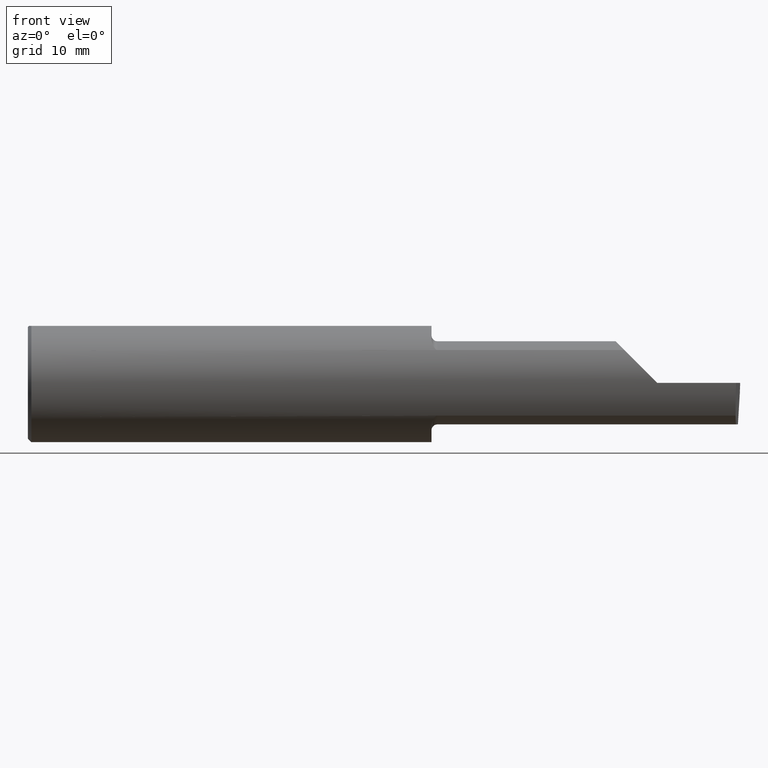
[diagram: clean part render]
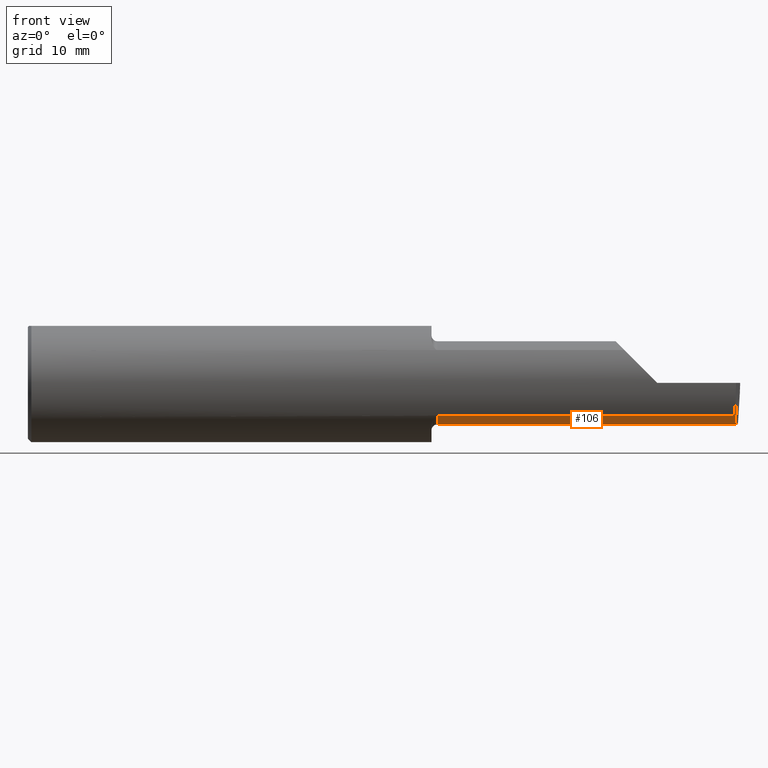
[diagram: same view with one face highlighted and labeled with its STEP entity id]
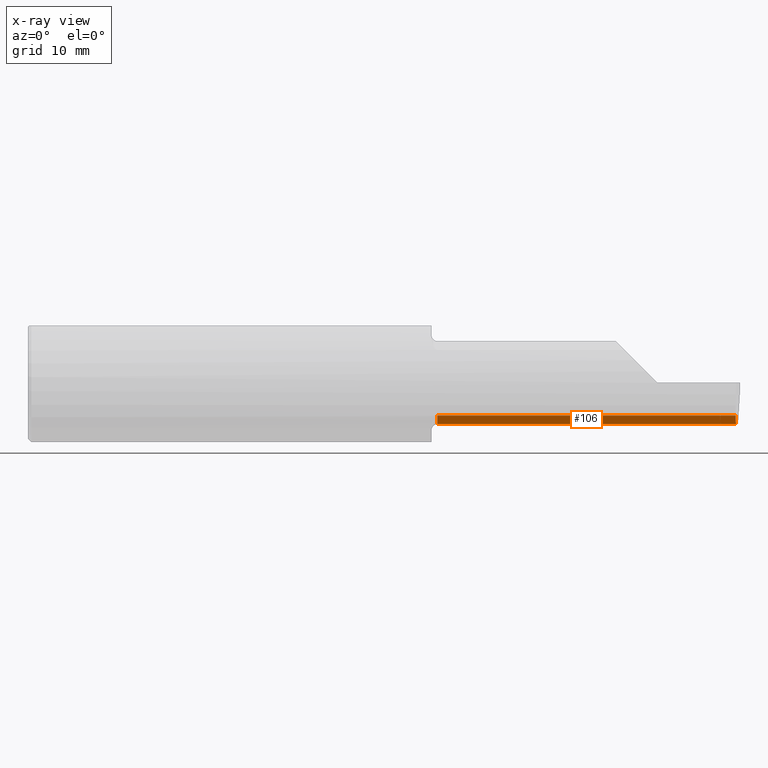
[diagram: x-ray of the same camera — body ghosted, the highlighted face saturated]
A machine part, front view. The second image highlights one B-rep face of the part: STEP entity #106.
The next image is the same camera in x-ray: the body ghosted, the highlighted face saturated — about 0% of this face is hidden behind the body in this view.
In plain terms, the highlighted cylindrical surface (partial cylindrical patch) has radius 4.445 mm, axis along (-1, -0, -0).
Its self-contained STEP definition (entity closure, byte-faithful):
#8 = AXIS2_PLACEMENT_3D ( 'NONE', #788, #374, #795 ) ;
#10 = VERTEX_POINT ( 'NONE', #298 ) ;
#22 = CARTESIAN_POINT ( 'NONE',  ( 3.000000000000000444, -0.1008499999999999813, -0.1749999999999999889 ) ) ;
#25 = ORIENTED_EDGE ( 'NONE', *, *, #698, .F. ) ;
#29 = CARTESIAN_POINT ( 'NONE',  ( 2.980479240051444378, -0.2080850024789291652, -0.1382955322609665250 ) ) ;
#31 = LINE ( 'NONE', #529, #437 ) ;
#49 = CARTESIAN_POINT ( 'NONE',  ( 1.725000000000000089, -0.1008499999999999674, 0.000000000000000000 ) ) ;
#77 = VERTEX_POINT ( 'NONE', #672 ) ;
#106 = ADVANCED_FACE ( 'NONE', ( #187 ), #732, .T. ) ;
#152 = CARTESIAN_POINT ( 'NONE',  ( 1.700000000000000178, -0.1008499999999999536, -0.1749999999999999889 ) ) ;
#170 = CIRCLE ( 'NONE', #417, 0.1749999999999999889 ) ;
#187 = FACE_OUTER_BOUND ( 'NONE', #426, .T. ) ;
#216 = ORIENTED_EDGE ( 'NONE', *, *, #348, .F. ) ;
#223 = ORIENTED_EDGE ( 'NONE', *, *, #411, .T. ) ;
#298 = CARTESIAN_POINT ( 'NONE',  ( 2.983262242683407006, -0.1008499999999999674, -0.1749999999999999889 ) ) ;
#344 = DIRECTION ( 'NONE',  ( -1.000000000000000000, -0.000000000000000000, -0.000000000000000000 ) ) ;
#348 = EDGE_CURVE ( 'NONE', #583, #761, #170, .T. ) ;
#351 = DIRECTION ( 'NONE',  ( -1.000000000000000000, -0.000000000000000000, -0.000000000000000000 ) ) ;
#374 = DIRECTION ( 'NONE',  ( -1.000000000000000000, -0.000000000000000000, -0.000000000000000000 ) ) ;
#377 = CARTESIAN_POINT ( 'NONE',  ( 1.725000000000000089, -0.1008499999999999536, -0.1749999999999999889 ) ) ;
#411 = EDGE_CURVE ( 'NONE', #424, #761, #31, .T. ) ;
#417 = AXIS2_PLACEMENT_3D ( 'NONE', #49, #351, #549 ) ;
#424 = VERTEX_POINT ( 'NONE', #543 ) ;
#426 = EDGE_LOOP ( 'NONE', ( #556, #790, #25, #223, #216 ) ) ;
#437 = VECTOR ( 'NONE', #600, 39.37007874015748143 ) ;
#467 = LINE ( 'NONE', #152, #654 ) ;
#516 = CARTESIAN_POINT ( 'NONE',  ( 2.981893741990786495, -0.1400387324517231025, -0.1750000000000000167 ) ) ;
#527 = CARTESIAN_POINT ( 'NONE',  ( 2.983262242683407006, -0.1008499999999999674, -0.1749999999999999889 ) ) ;
#529 = CARTESIAN_POINT ( 'NONE',  ( 2.315500000000000114, -0.2080850024789291652, -0.1382955322609665250 ) ) ;
#543 = CARTESIAN_POINT ( 'NONE',  ( 2.980479240051444378, -0.2080850024789291652, -0.1382955322609665250 ) ) ;
#549 = DIRECTION ( 'NONE',  ( 0.000000000000000000, 0.000000000000000000, 1.000000000000000000 ) ) ;
#556 = ORIENTED_EDGE ( 'NONE', *, *, #636, .F. ) ;
#583 = VERTEX_POINT ( 'NONE', #377 ) ;
#586 = CARTESIAN_POINT ( 'NONE',  ( 2.980931506555613453, -0.1771157075472509779, -0.1623092683844330475 ) ) ;
#600 = DIRECTION ( 'NONE',  ( -1.000000000000000000, -0.000000000000000000, -0.000000000000000000 ) ) ;
#630 = VECTOR ( 'NONE', #344, 39.37007874015748143 ) ;
#636 = EDGE_CURVE ( 'NONE', #77, #583, #467, .T. ) ;
#642 = LINE ( 'NONE', #22, #630 ) ;
#646 = DIRECTION ( 'NONE',  ( -1.000000000000000000, -0.000000000000000000, -0.000000000000000000 ) ) ;
#654 = VECTOR ( 'NONE', #646, 39.37007874015748143 ) ;
#657 = EDGE_CURVE ( 'NONE', #10, #77, #642, .T. ) ;
#672 = CARTESIAN_POINT ( 'NONE',  ( 2.917029432995152050, -0.1008500000000000091, -0.1749999999999999889 ) ) ;
#698 = EDGE_CURVE ( 'NONE', #424, #10, #709, .T. ) ;
#709 =( BOUNDED_CURVE ( )  B_SPLINE_CURVE ( 3, ( #29, #586, #516, #527 ),
 .UNSPECIFIED., .F., .F. ) 
 B_SPLINE_CURVE_WITH_KNOTS ( ( 4, 4 ),
 ( 0.2675252011803429530, 0.9270880441442505004 ),
 .UNSPECIFIED. ) 
 CURVE ( )  GEOMETRIC_REPRESENTATION_ITEM ( )  RATIONAL_B_SPLINE_CURVE ( ( 1.000000000000000000, 0.9640754331822828371, 0.9640754331822828371, 1.000000000000000000 ) ) 
 REPRESENTATION_ITEM ( '' )  );
#718 = CARTESIAN_POINT ( 'NONE',  ( 1.725000000000000089, -0.2080850024789291375, -0.1382955322609665805 ) ) ;
#732 = CYLINDRICAL_SURFACE ( 'NONE', #8, 0.1749999999999999889 ) ;
#761 = VERTEX_POINT ( 'NONE', #718 ) ;
#788 = CARTESIAN_POINT ( 'NONE',  ( 1.700000000000000178, -0.1008499999999999674, 0.000000000000000000 ) ) ;
#790 = ORIENTED_EDGE ( 'NONE', *, *, #657, .F. ) ;
#795 = DIRECTION ( 'NONE',  ( 0.000000000000000000, 0.000000000000000000, 1.000000000000000000 ) ) ;